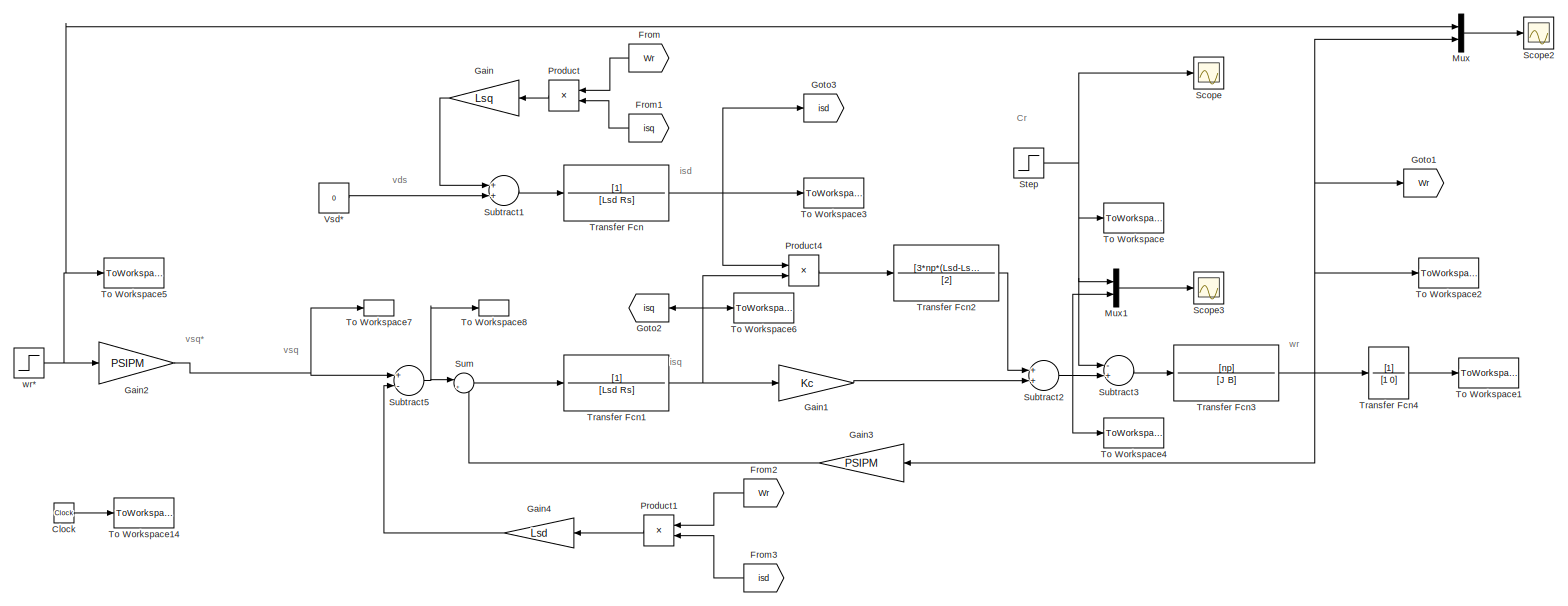
[diagram: root canvas - part 1/1, most of the canvas]
MODEL slx_2ec10d409731
KIND model
CONFIG AbsTol = auto
CONFIG EnableMultiTasking = off
CONFIG FixedStep = 1e-4
CONFIG MaxStep = auto
CONFIG MinStep = auto
CONFIG RelTol = 1e-3
CONFIG SampleTimeConstraint = Unconstrained
CONFIG Solver = ode1
CONFIG SolverName = ode1
CONFIG StartTime = 0.0
CONFIG StopTime = 0.1
BLOCK [Clock] Clock
BLOCK [From] From
  GotoTag = Wr
BLOCK [From] From1
  GotoTag = isq
BLOCK [From] From2
  GotoTag = Wr
BLOCK [From] From3
  GotoTag = isd
BLOCK [Gain] Gain
  Gain = Lsq
  OutDataTypeStr = Inherit: Inherit via internal rule
  ParamDataTypeStr = Inherit: Inherit via internal rule
  SaturateOnIntegerOverflow = off
BLOCK [Gain] Gain1
  Gain = Kc
  OutDataTypeStr = Inherit: Inherit via internal rule
  ParamDataTypeStr = Inherit: Inherit via internal rule
  SaturateOnIntegerOverflow = off
BLOCK [Gain] Gain2
  Gain = PSIPM
  OutDataTypeStr = Inherit: Inherit via internal rule
  ParamDataTypeStr = Inherit: Inherit via internal rule
  SaturateOnIntegerOverflow = off
BLOCK [Gain] Gain3
  Gain = PSIPM
  OutDataTypeStr = Inherit: Inherit via internal rule
  ParamDataTypeStr = Inherit: Inherit via internal rule
  SaturateOnIntegerOverflow = off
BLOCK [Gain] Gain4
  Gain = Lsd
  OutDataTypeStr = Inherit: Inherit via internal rule
  ParamDataTypeStr = Inherit: Inherit via internal rule
  SaturateOnIntegerOverflow = off
BLOCK [Goto] Goto1
  GotoTag = Wr
BLOCK [Goto] Goto2
  GotoTag = isq
BLOCK [Goto] Goto3
  GotoTag = isd
BLOCK [Mux] Mux
  DisplayOption = bar
  Inputs = 2
  Ports = [2, 1]
BLOCK [Mux] Mux1
  DisplayOption = bar
  Inputs = 2
  Ports = [2, 1]
BLOCK [Product] Product
  InputSameDT = off
  OutDataTypeStr = Inherit: Inherit via internal rule
  Ports = [2, 1]
  RndMeth = Floor
  SaturateOnIntegerOverflow = off
BLOCK [Product] Product1
  InputSameDT = off
  OutDataTypeStr = Inherit: Inherit via internal rule
  Ports = [2, 1]
  RndMeth = Floor
  SaturateOnIntegerOverflow = off
BLOCK [Product] Product4
  InputSameDT = off
  OutDataTypeStr = Inherit: Inherit via internal rule
  Ports = [2, 1]
  RndMeth = Floor
  SaturateOnIntegerOverflow = off
BLOCK [Scope] Scope
  Floating = off
  NumInputPorts = 1
  Ports = [1]
  ScopeSpecificationString = Simulink.scopes.TimeScopeBlockCfg('CurrentConfiguration', extmgr.ConfigurationSet(extmgr.Configuration('Core','General UI',true),extmgr.Configuration('Core','Source UI',true),extmgr.Configuration('Sources','WiredSimulink',true),extmgr.Configuration('Visuals','Time Domain',true,'SerializedDisplays',{struct('MinYLimReal','0.2','MaxYLimReal','0.4','YLabelReal','','MinYLimMag','0.2','MaxYLimMag','0.4'...<+1319ch>
BLOCK [Scope] Scope2
  Floating = off
  NumInputPorts = 1
  Ports = [1]
  ScopeSpecificationString = Simulink.scopes.TimeScopeBlockCfg('CurrentConfiguration', extmgr.ConfigurationSet(extmgr.Configuration('Core','General UI',true),extmgr.Configuration('Core','Source UI',true),extmgr.Configuration('Sources','WiredSimulink',true,'DataLoggingVariableName','ScopeData1'),extmgr.Configuration('Visuals','Time Domain',true,'SerializedDisplays',{struct('MinYLimReal','-212.58394','MaxYLimReal','1913.25549',...<+1467ch>
BLOCK [Scope] Scope3
  Floating = off
  NumInputPorts = 1
  Ports = [1]
  ScopeSpecificationString = Simulink.scopes.TimeScopeBlockCfg('CurrentConfiguration', extmgr.ConfigurationSet(extmgr.Configuration('Core','General UI',true),extmgr.Configuration('Core','Source UI',true),extmgr.Configuration('Sources','WiredSimulink',true,'DataLoggingVariableName','ScopeData2'),extmgr.Configuration('Visuals','Time Domain',true,'SerializedDisplays',{struct('MinYLimReal','-3.0348','MaxYLimReal','10.29038','YLab...<+1450ch>
BLOCK [Step] Step
  After = 0.6
  SampleTime = 0
  Time = 0.05
BLOCK [Sum] Subtract1
  InputSameDT = off
  OutDataTypeStr = Inherit: Inherit via internal rule
  Ports = [2, 1]
  SaturateOnIntegerOverflow = off
BLOCK [Sum] Subtract2
  InputSameDT = off
  OutDataTypeStr = Inherit: Inherit via internal rule
  Ports = [2, 1]
  SaturateOnIntegerOverflow = off
BLOCK [Sum] Subtract3
  InputSameDT = off
  Inputs = -+
  OutDataTypeStr = Inherit: Inherit via internal rule
  Ports = [2, 1]
  SaturateOnIntegerOverflow = off
BLOCK [Sum] Subtract5
  InputSameDT = off
  Inputs = +-
  OutDataTypeStr = Inherit: Inherit via internal rule
  Ports = [2, 1]
  SaturateOnIntegerOverflow = off
BLOCK [Sum] Sum
  IconShape = round
  InputSameDT = off
  Inputs = |+-
  OutDataTypeStr = Inherit: Inherit via internal rule
  Ports = [2, 1]
  SaturateOnIntegerOverflow = off
BLOCK [ToWorkspace] To Workspace
  FixptAsFi = on
  MaxDataPoints = inf
  Ports = [1]
  SampleTime = -1
  Save2DSignal = 3-D array (concatenate along third dimension)
  VariableName = Cr
BLOCK [ToWorkspace] To Workspace1
  FixptAsFi = on
  MaxDataPoints = inf
  Ports = [1]
  SampleTime = -1
  Save2DSignal = 3-D array (concatenate along third dimension)
  SaveFormat = Timeseries
  VariableName = tetar
BLOCK [ToWorkspace] To Workspace14
  FixptAsFi = on
  MaxDataPoints = inf
  Ports = [1]
  SampleTime = -1
  Save2DSignal = 3-D array (concatenate along third dimension)
  VariableName = ts
BLOCK [ToWorkspace] To Workspace2
  FixptAsFi = on
  MaxDataPoints = inf
  Ports = [1]
  SampleTime = -1
  Save2DSignal = 3-D array (concatenate along third dimension)
  VariableName = wr
BLOCK [ToWorkspace] To Workspace3
  FixptAsFi = on
  MaxDataPoints = inf
  Ports = [1]
  SampleTime = -1
  Save2DSignal = 3-D array (concatenate along third dimension)
  SaveFormat = Timeseries
  VariableName = isd
BLOCK [ToWorkspace] To Workspace4
  FixptAsFi = on
  MaxDataPoints = inf
  Ports = [1]
  SampleTime = -1
  Save2DSignal = 3-D array (concatenate along third dimension)
  VariableName = Ce
BLOCK [ToWorkspace] To Workspace5
  FixptAsFi = on
  MaxDataPoints = inf
  Ports = [1]
  SampleTime = -1
  Save2DSignal = 3-D array (concatenate along third dimension)
  VariableName = wrrif
BLOCK [ToWorkspace] To Workspace6
  FixptAsFi = on
  MaxDataPoints = inf
  Ports = [1]
  SampleTime = -1
  Save2DSignal = 3-D array (concatenate along third dimension)
  SaveFormat = Timeseries
  VariableName = isq
BLOCK [ToWorkspace] To Workspace7
  MaxDataPoints = inf
  Ports = [1]
  SampleTime = -1
  Save2DSignal = 3-D array (concatenate along third dimension)
  VariableName = vsqstar
BLOCK [ToWorkspace] To Workspace8
  MaxDataPoints = inf
  Ports = [1]
  SampleTime = -1
  Save2DSignal = 3-D array (concatenate along third dimension)
  VariableName = vsqq
BLOCK [TransferFcn] Transfer Fcn
  Denominator = [Lsd Rs]
BLOCK [TransferFcn] Transfer Fcn1
  Denominator = [Lsd Rs]
BLOCK [TransferFcn] Transfer Fcn2
  Denominator = [2]
  Numerator = [3*np*(Lsd-Lsq)]
BLOCK [TransferFcn] Transfer Fcn3
  Denominator = [J B]
  Numerator = [np]
BLOCK [TransferFcn] Transfer Fcn4
  Denominator = [1 0]
BLOCK [Constant] Vsd*
  Value = 0
BLOCK [Step] wr*
  After = wrr
  SampleTime = 0
  Time = 0
ANNOTATION (root): Cr
ANNOTATION (root): isd
ANNOTATION (root): isq
ANNOTATION (root): vds
ANNOTATION (root): vsq
ANNOTATION (root): vsq*
ANNOTATION (root): wr
LINE Clock:1 -> To Workspace14:1
LINE From1:1 -> Product:2
LINE From2:1 -> Product1:1
LINE From3:1 -> Product1:2
LINE From:1 -> Product:1
LINE Gain1:1 -> Subtract2:2
NET Gain2:1 -> Subtract5:1, To Workspace7:1
LINE Gain3:1 -> Sum:2
LINE Gain4:1 -> Subtract5:2
LINE Gain:1 -> Subtract1:1
LINE Mux1:1 -> Scope3:1
LINE Mux:1 -> Scope2:1
LINE Product1:1 -> Gain4:1
LINE Product4:1 -> Transfer Fcn2:1
LINE Product:1 -> Gain:1
NET Step:1 -> Mux1:1, Scope:1, Subtract3:1, To Workspace:1
LINE Subtract1:1 -> Transfer Fcn:1
NET Subtract2:1 -> Mux1:2, Subtract3:2, To Workspace4:1
LINE Subtract3:1 -> Transfer Fcn3:1
NET Subtract5:1 -> Sum:1, To Workspace8:1
LINE Sum:1 -> Transfer Fcn1:1
NET Transfer Fcn1:1 -> Gain1:1, Goto2:1, Product4:2, To Workspace6:1
LINE Transfer Fcn2:1 -> Subtract2:1
NET Transfer Fcn3:1 -> Gain3:1, Goto1:1, Mux:2, To Workspace2:1, Transfer Fcn4:1
LINE Transfer Fcn4:1 -> To Workspace1:1
NET Transfer Fcn:1 -> Goto3:1, Product4:1, To Workspace3:1
LINE Vsd*:1 -> Subtract1:2
NET wr*:1 -> Gain2:1, Mux:1, To Workspace5:1
note: NET lines group one-source signal fan-out (src -> all destinations, sorted); 1:1 wires keep LINE
